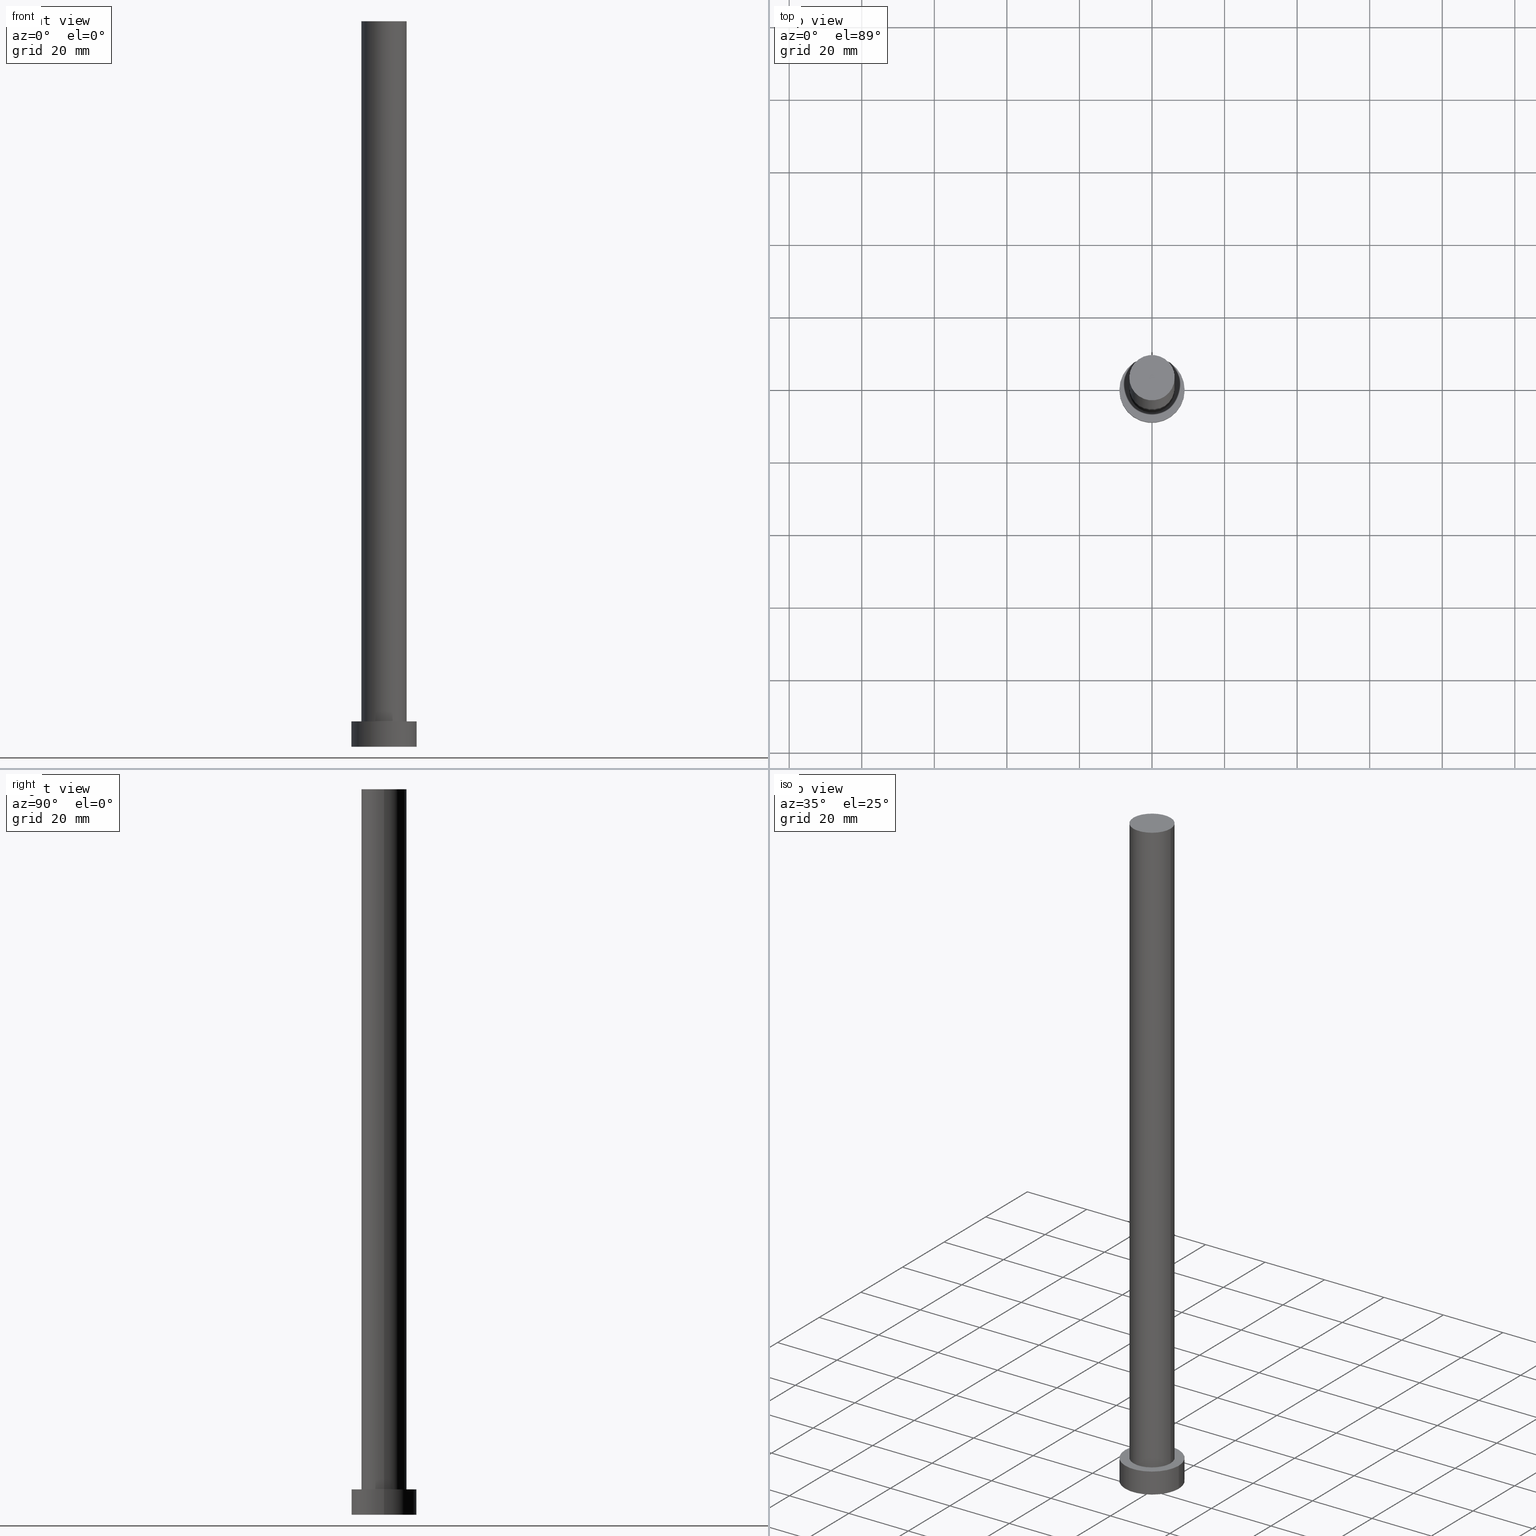
[diagram: canonical four-view strip — front | top / right | iso, engineering-drawing reading convention]
A machine part, canonical four-view strip (front | top / right | iso — engineering-drawing reading convention). The complete STEP part file that produces these views, byte-faithful:
ISO-10303-21;
HEADER;
FILE_DESCRIPTION (( 'STEP AP203' ),
    '1' );
FILE_NAME ('414f.STEP',
    '2023-02-13T10:38:10',
    ( '' ),
    ( '' ),
    'SwSTEP 2.0',
    'SolidWorks 2019',
    '' );
FILE_SCHEMA (( 'CONFIG_CONTROL_DESIGN' ));
ENDSEC;

DATA;
#1 = DIRECTION ( 'NONE',  ( 0.000000000000000000, 0.000000000000000000, 1.000000000000000000 ) ) ;
#2 = AXIS2_PLACEMENT_3D ( 'NONE', #128, #254, #253 ) ;
#3 = ADVANCED_FACE ( 'NONE', ( #234, #156 ), #169, .T. ) ;
#4 = DIRECTION ( 'NONE',  ( 0.000000000000000000, 0.000000000000000000, 1.000000000000000000 ) ) ;
#5 = CARTESIAN_POINT ( 'NONE',  ( 0.000000000000000000, 0.000000000000000000, 7.000000000000000000 ) ) ;
#6 = DIRECTION ( 'NONE',  ( -0.000000000000000000, -0.000000000000000000, -1.000000000000000000 ) ) ;
#7 = DIRECTION ( 'NONE',  ( 0.000000000000000000, 0.000000000000000000, 1.000000000000000000 ) ) ;
#8 = CARTESIAN_POINT ( 'NONE',  ( 0.000000000000000000, 0.000000000000000000, 0.000000000000000000 ) ) ;
#9 = PERSON_AND_ORGANIZATION ( #198, #235 ) ;
#10 = CIRCLE ( 'NONE', #252, 6.250000000000000000 ) ;
#11 = AXIS2_PLACEMENT_3D ( 'NONE', #45, #7, #80 ) ;
#12 = EDGE_LOOP ( 'NONE', ( #154, #17 ) ) ;
#13 = APPROVAL_ROLE ( '' ) ;
#14 = COORDINATED_UNIVERSAL_TIME_OFFSET ( 1, 0, .AHEAD. ) ;
#15 = PERSON_AND_ORGANIZATION_ROLE ( 'design_owner' ) ;
#16 = ORIENTED_EDGE ( 'NONE', *, *, #233, .T. ) ;
#17 = ORIENTED_EDGE ( 'NONE', *, *, #211, .T. ) ;
#18 = ORIENTED_EDGE ( 'NONE', *, *, #36, .T. ) ;
#19 = ORIENTED_EDGE ( 'NONE', *, *, #185, .F. ) ;
#20 = EDGE_LOOP ( 'NONE', ( #18, #214 ) ) ;
#21 = CIRCLE ( 'NONE', #204, 6.250000000000000000 ) ;
#22 =( NAMED_UNIT ( * ) SI_UNIT ( $, .STERADIAN. ) SOLID_ANGLE_UNIT ( ) );
#23 = PRODUCT_DEFINITION_SHAPE ( 'NONE', 'NONE',  #53 ) ;
#24 = CARTESIAN_POINT ( 'NONE',  ( 0.000000000000000000, 0.000000000000000000, 200.0000000000000000 ) ) ;
#25 = EDGE_CURVE ( 'NONE', #248, #190, #188, .T. ) ;
#26 = DIRECTION ( 'NONE',  ( -0.000000000000000000, -0.000000000000000000, -1.000000000000000000 ) ) ;
#27 = DIRECTION ( 'NONE',  ( 0.000000000000000000, 0.000000000000000000, 1.000000000000000000 ) ) ;
#28 = COORDINATED_UNIVERSAL_TIME_OFFSET ( 1, 0, .AHEAD. ) ;
#29 = CALENDAR_DATE ( 2023, 13, 2 ) ;
#30 = LOCAL_TIME ( 11, 38, 10.00000000000000000, #14 ) ;
#31 = PERSON_AND_ORGANIZATION_ROLE ( 'design_supplier' ) ;
#32 = ADVANCED_FACE ( 'NONE', ( #213 ), #153, .T. ) ;
#33 = DATE_AND_TIME ( #250, #218 ) ;
#34 = CIRCLE ( 'NONE', #44, 9.000000000000000000 ) ;
#35 = DIRECTION ( 'NONE',  ( 0.000000000000000000, 0.000000000000000000, 1.000000000000000000 ) ) ;
#36 = EDGE_CURVE ( 'NONE', #79, #210, #202, .T. ) ;
#37 = DIRECTION ( 'NONE',  ( 1.000000000000000000, 0.000000000000000000, 0.000000000000000000 ) ) ;
#38 = ORIENTED_EDGE ( 'NONE', *, *, #223, .F. ) ;
#39 = APPROVAL_PERSON_ORGANIZATION ( #110, #159, #147 ) ;
#40 = VERTEX_POINT ( 'NONE', #113 ) ;
#41 = ADVANCED_FACE ( 'NONE', ( #232 ), #148, .F. ) ;
#42 = ORIENTED_EDGE ( 'NONE', *, *, #223, .T. ) ;
#43 = CARTESIAN_POINT ( 'NONE',  ( 0.000000000000000000, 0.000000000000000000, 7.000000000000000000 ) ) ;
#44 = AXIS2_PLACEMENT_3D ( 'NONE', #119, #118, #104 ) ;
#45 = CARTESIAN_POINT ( 'NONE',  ( 0.000000000000000000, 0.000000000000000000, 7.000000000000000000 ) ) ;
#46 = CC_DESIGN_PERSON_AND_ORGANIZATION_ASSIGNMENT ( #249, #163, ( #240 ) ) ;
#47 = CARTESIAN_POINT ( 'NONE',  ( 9.000000000000000000, 1.102182119232617714E-15, 0.000000000000000000 ) ) ;
#48 = DIRECTION ( 'NONE',  ( 1.000000000000000000, 0.000000000000000000, 0.000000000000000000 ) ) ;
#49 = VECTOR ( 'NONE', #129, 1000.000000000000000 ) ;
#50 = DIRECTION ( 'NONE',  ( -0.000000000000000000, -0.000000000000000000, -1.000000000000000000 ) ) ;
#51 = PERSON_AND_ORGANIZATION ( #198, #235 ) ;
#52 = CALENDAR_DATE ( 2023, 13, 2 ) ;
#53 = PRODUCT_DEFINITION ( 'NEZN�M�', '', #240, #144 ) ;
#54 = EDGE_LOOP ( 'NONE', ( #193, #189, #236, #133 ) ) ;
#55 = AXIS2_PLACEMENT_3D ( 'NONE', #43, #26, #160 ) ;
#56 = ORIENTED_EDGE ( 'NONE', *, *, #120, .F. ) ;
#57 = MANIFOLD_SOLID_BREP ( 'P�idat vysunut�m3', #155 ) ;
#58 = DIRECTION ( 'NONE',  ( 0.000000000000000000, 0.000000000000000000, 1.000000000000000000 ) ) ;
#59 = EDGE_LOOP ( 'NONE', ( #96, #171, #173, #192 ) ) ;
#60 =( GEOMETRIC_REPRESENTATION_CONTEXT ( 3 ) GLOBAL_UNCERTAINTY_ASSIGNED_CONTEXT ( ( #142 ) ) GLOBAL_UNIT_ASSIGNED_CONTEXT ( ( #224, #100, #22 ) ) REPRESENTATION_CONTEXT ( 'NONE', 'WORKASPACE' ) );
#61 = EDGE_LOOP ( 'NONE', ( #75, #172 ) ) ;
#62 = DIRECTION ( 'NONE',  ( -0.000000000000000000, -0.000000000000000000, -1.000000000000000000 ) ) ;
#63 = AXIS2_PLACEMENT_3D ( 'NONE', #5, #6, #135 ) ;
#64 = FACE_OUTER_BOUND ( 'NONE', #20, .T. ) ;
#65 = DIRECTION ( 'NONE',  ( 0.000000000000000000, 0.000000000000000000, 1.000000000000000000 ) ) ;
#66 = DIRECTION ( 'NONE',  ( 1.000000000000000000, 0.000000000000000000, 0.000000000000000000 ) ) ;
#67 = APPROVAL_STATUS ( 'not_yet_approved' ) ;
#68 = APPLICATION_PROTOCOL_DEFINITION ( 'international standard', 'config_control_design', 1994, #215 ) ;
#69 = DATE_AND_TIME ( #52, #88 ) ;
#70 = EDGE_CURVE ( 'NONE', #210, #79, #149, .T. ) ;
#71 = DATE_TIME_ROLE ( 'classification_date' ) ;
#72 = CARTESIAN_POINT ( 'NONE',  ( 0.000000000000000000, 0.000000000000000000, 200.0000000000000000 ) ) ;
#73 = CARTESIAN_POINT ( 'NONE',  ( 0.000000000000000000, 0.000000000000000000, 200.0000000000000000 ) ) ;
#74 = APPROVAL_PERSON_ORGANIZATION ( #9, #181, #86 ) ;
#75 = ORIENTED_EDGE ( 'NONE', *, *, #205, .F. ) ;
#76 = ORIENTED_EDGE ( 'NONE', *, *, #25, .T. ) ;
#77 = ADVANCED_FACE ( 'NONE', ( #136 ), #197, .T. ) ;
#78 = AXIS2_PLACEMENT_3D ( 'NONE', #72, #35, #37 ) ;
#79 = VERTEX_POINT ( 'NONE', #138 ) ;
#80 = DIRECTION ( 'NONE',  ( 1.000000000000000000, 0.000000000000000000, 0.000000000000000000 ) ) ;
#81 = CARTESIAN_POINT ( 'NONE',  ( 0.000000000000000000, 0.000000000000000000, 7.000000000000000000 ) ) ;
#82 = CARTESIAN_POINT ( 'NONE',  ( 9.000000000000000000, 1.102182119232617714E-15, 7.000000000000000000 ) ) ;
#83 = CIRCLE ( 'NONE', #87, 9.000000000000000000 ) ;
#84 = PLANE ( 'NONE',  #212 ) ;
#85 = CARTESIAN_POINT ( 'NONE',  ( -9.000000000000000000, 0.000000000000000000, 7.000000000000000000 ) ) ;
#86 = APPROVAL_ROLE ( '' ) ;
#87 = AXIS2_PLACEMENT_3D ( 'NONE', #220, #4, #134 ) ;
#88 = LOCAL_TIME ( 11, 38, 10.00000000000000000, #107 ) ;
#89 = APPROVAL_STATUS ( 'not_yet_approved' ) ;
#90 = EDGE_CURVE ( 'NONE', #248, #40, #83, .T. ) ;
#91 = APPLICATION_PROTOCOL_DEFINITION ( 'international standard', 'config_control_design', 1994, #196 ) ;
#92 = PERSON_AND_ORGANIZATION_ROLE ( 'classification_officer' ) ;
#93 = PERSON_AND_ORGANIZATION ( #198, #235 ) ;
#94 = AXIS2_PLACEMENT_3D ( 'NONE', #165, #186, #141 ) ;
#95 = VERTEX_POINT ( 'NONE', #217 ) ;
#96 = ORIENTED_EDGE ( 'NONE', *, *, #233, .F. ) ;
#97 = CIRCLE ( 'NONE', #105, 9.000000000000000000 ) ;
#98 = EDGE_LOOP ( 'NONE', ( #19, #231, #76, #42 ) ) ;
#99 = CARTESIAN_POINT ( 'NONE',  ( 0.000000000000000000, 0.000000000000000000, 0.000000000000000000 ) ) ;
#100 =( NAMED_UNIT ( * ) PLANE_ANGLE_UNIT ( ) SI_UNIT ( $, .RADIAN. ) );
#101 = EDGE_CURVE ( 'NONE', #174, #190, #34, .T. ) ;
#102 = LINE ( 'NONE', #82, #183 ) ;
#103 = DIRECTION ( 'NONE',  ( 1.000000000000000000, 0.000000000000000000, 0.000000000000000000 ) ) ;
#104 = DIRECTION ( 'NONE',  ( 1.000000000000000000, 0.000000000000000000, 0.000000000000000000 ) ) ;
#105 = AXIS2_PLACEMENT_3D ( 'NONE', #8, #65, #48 ) ;
#106 = FACE_OUTER_BOUND ( 'NONE', #54, .T. ) ;
#107 = COORDINATED_UNIVERSAL_TIME_OFFSET ( 1, 0, .AHEAD. ) ;
#108 = PRODUCT_RELATED_PRODUCT_CATEGORY ( 'detail', '', ( #239 ) ) ;
#109 = APPROVAL_STATUS ( 'not_yet_approved' ) ;
#110 = PERSON_AND_ORGANIZATION ( #198, #235 ) ;
#111 = CC_DESIGN_APPROVAL ( #181, ( #124 ) ) ;
#112 = CARTESIAN_POINT ( 'NONE',  ( 0.000000000000000000, 0.000000000000000000, 200.0000000000000000 ) ) ;
#113 = CARTESIAN_POINT ( 'NONE',  ( 9.000000000000000000, 1.102182119232617714E-15, 7.000000000000000000 ) ) ;
#114 = CC_DESIGN_APPROVAL ( #159, ( #53 ) ) ;
#115 = DIRECTION ( 'NONE',  ( -0.000000000000000000, -0.000000000000000000, -1.000000000000000000 ) ) ;
#116 = DIRECTION ( 'NONE',  ( 1.000000000000000000, 0.000000000000000000, -0.000000000000000000 ) ) ;
#117 = VECTOR ( 'NONE', #50, 1000.000000000000000 ) ;
#118 = DIRECTION ( 'NONE',  ( 0.000000000000000000, 0.000000000000000000, 1.000000000000000000 ) ) ;
#119 = CARTESIAN_POINT ( 'NONE',  ( 0.000000000000000000, 0.000000000000000000, 0.000000000000000000 ) ) ;
#120 = EDGE_CURVE ( 'NONE', #79, #95, #243, .T. ) ;
#121 = CARTESIAN_POINT ( 'NONE',  ( 6.250000000000000000, 7.654042494670957606E-16, 200.0000000000000000 ) ) ;
#122 = CARTESIAN_POINT ( 'NONE',  ( -6.250000000000000000, 0.000000000000000000, 200.0000000000000000 ) ) ;
#123 = APPROVAL_DATE_TIME ( #33, #181 ) ;
#124 = SECURITY_CLASSIFICATION ( '', '', #182 ) ;
#125 = DATE_AND_TIME ( #167, #30 ) ;
#126 = MECHANICAL_CONTEXT ( 'NONE', #196, 'mechanical' ) ;
#127 = DATE_TIME_ROLE ( 'creation_date' ) ;
#128 = CARTESIAN_POINT ( 'NONE',  ( 0.000000000000000000, 0.000000000000000000, 7.000000000000000000 ) ) ;
#129 = DIRECTION ( 'NONE',  ( -0.000000000000000000, -0.000000000000000000, -1.000000000000000000 ) ) ;
#130 = ORIENTED_EDGE ( 'NONE', *, *, #70, .F. ) ;
#131 = CARTESIAN_POINT ( 'NONE',  ( -9.000000000000000000, 0.000000000000000000, 7.000000000000000000 ) ) ;
#132 = VECTOR ( 'NONE', #157, 1000.000000000000000 ) ;
#133 = ORIENTED_EDGE ( 'NONE', *, *, #25, .F. ) ;
#134 = DIRECTION ( 'NONE',  ( 1.000000000000000000, 0.000000000000000000, 0.000000000000000000 ) ) ;
#135 = DIRECTION ( 'NONE',  ( -1.000000000000000000, 0.000000000000000000, 0.000000000000000000 ) ) ;
#136 = FACE_OUTER_BOUND ( 'NONE', #229, .T. ) ;
#137 = CC_DESIGN_PERSON_AND_ORGANIZATION_ASSIGNMENT ( #51, #92, ( #124 ) ) ;
#138 = CARTESIAN_POINT ( 'NONE',  ( -6.250000000000000000, 0.000000000000000000, 200.0000000000000000 ) ) ;
#139 = AXIS2_PLACEMENT_3D ( 'NONE', #112, #1, #66 ) ;
#140 = EDGE_CURVE ( 'NONE', #251, #95, #10, .T. ) ;
#141 = DIRECTION ( 'NONE',  ( 1.000000000000000000, 0.000000000000000000, 0.000000000000000000 ) ) ;
#142 = UNCERTAINTY_MEASURE_WITH_UNIT (LENGTH_MEASURE( 1.000000000000000082E-05 ), #224, 'distance_accuracy_value', 'NONE');
#143 = DATE_AND_TIME ( #29, #164 ) ;
#144 = DESIGN_CONTEXT ( 'detailed design', #215, 'design' ) ;
#145 = COORDINATED_UNIVERSAL_TIME_OFFSET ( 1, 0, .AHEAD. ) ;
#146 = CC_DESIGN_PERSON_AND_ORGANIZATION_ASSIGNMENT ( #93, #15, ( #239 ) ) ;
#147 = APPROVAL_ROLE ( '' ) ;
#148 = PLANE ( 'NONE',  #222 ) ;
#149 = CIRCLE ( 'NONE', #139, 6.250000000000000000 ) ;
#150 = APPROVAL_PERSON_ORGANIZATION ( #184, #195, #13 ) ;
#151 = CC_DESIGN_PERSON_AND_ORGANIZATION_ASSIGNMENT ( #203, #31, ( #240 ) ) ;
#152 = ORIENTED_EDGE ( 'NONE', *, *, #140, .T. ) ;
#153 = CYLINDRICAL_SURFACE ( 'NONE', #187, 6.250000000000000000 ) ;
#154 = ORIENTED_EDGE ( 'NONE', *, *, #90, .T. ) ;
#155 = CLOSED_SHELL ( 'NONE', ( #77, #168, #191, #3, #41, #32, #216 ) ) ;
#156 = FACE_OUTER_BOUND ( 'NONE', #12, .T. ) ;
#157 = DIRECTION ( 'NONE',  ( -0.000000000000000000, -0.000000000000000000, -1.000000000000000000 ) ) ;
#158 = LINE ( 'NONE', #121, #132 ) ;
#159 = APPROVAL ( #89, 'NEUR�EN�' ) ;
#160 = DIRECTION ( 'NONE',  ( -1.000000000000000000, 0.000000000000000000, 0.000000000000000000 ) ) ;
#161 = CARTESIAN_POINT ( 'NONE',  ( 0.000000000000000000, 0.000000000000000000, 200.0000000000000000 ) ) ;
#162 = CARTESIAN_POINT ( 'NONE',  ( 6.250000000000000000, 7.654042494670957606E-16, 7.000000000000000000 ) ) ;
#163 = PERSON_AND_ORGANIZATION_ROLE ( 'creator' ) ;
#164 = LOCAL_TIME ( 11, 38, 10.00000000000000000, #28 ) ;
#165 = CARTESIAN_POINT ( 'NONE',  ( 0.000000000000000000, 0.000000000000000000, 0.000000000000000000 ) ) ;
#166 = PERSON_AND_ORGANIZATION_ROLE ( 'creator' ) ;
#167 = CALENDAR_DATE ( 2023, 13, 2 ) ;
#168 = ADVANCED_FACE ( 'NONE', ( #106 ), #221, .T. ) ;
#169 = PLANE ( 'NONE',  #2 ) ;
#170 = CC_DESIGN_DATE_AND_TIME_ASSIGNMENT ( #69, #127, ( #53 ) ) ;
#171 = ORIENTED_EDGE ( 'NONE', *, *, #36, .F. ) ;
#172 = ORIENTED_EDGE ( 'NONE', *, *, #140, .F. ) ;
#173 = ORIENTED_EDGE ( 'NONE', *, *, #120, .T. ) ;
#174 = VERTEX_POINT ( 'NONE', #47 ) ;
#175 = CARTESIAN_POINT ( 'NONE',  ( 0.000000000000000000, 0.000000000000000000, 7.000000000000000000 ) ) ;
#176 = DIRECTION ( 'NONE',  ( -1.000000000000000000, 0.000000000000000000, 0.000000000000000000 ) ) ;
#177 = DIRECTION ( 'NONE',  ( -0.000000000000000000, -0.000000000000000000, -1.000000000000000000 ) ) ;
#178 = DIRECTION ( 'NONE',  ( 0.000000000000000000, 0.000000000000000000, 1.000000000000000000 ) ) ;
#179 = CC_DESIGN_APPROVAL ( #195, ( #240 ) ) ;
#180 = CYLINDRICAL_SURFACE ( 'NONE', #55, 9.000000000000000000 ) ;
#181 = APPROVAL ( #67, 'NEUR�EN�' ) ;
#182 = SECURITY_CLASSIFICATION_LEVEL ( 'unclassified' ) ;
#183 = VECTOR ( 'NONE', #177, 1000.000000000000000 ) ;
#184 = PERSON_AND_ORGANIZATION ( #198, #235 ) ;
#185 = EDGE_CURVE ( 'NONE', #40, #174, #102, .T. ) ;
#186 = DIRECTION ( 'NONE',  ( 0.000000000000000000, 0.000000000000000000, 1.000000000000000000 ) ) ;
#187 = AXIS2_PLACEMENT_3D ( 'NONE', #73, #115, #208 ) ;
#188 = LINE ( 'NONE', #131, #49 ) ;
#189 = ORIENTED_EDGE ( 'NONE', *, *, #185, .T. ) ;
#190 = VERTEX_POINT ( 'NONE', #238 ) ;
#191 = ADVANCED_FACE ( 'NONE', ( #199 ), #180, .T. ) ;
#192 = ORIENTED_EDGE ( 'NONE', *, *, #205, .T. ) ;
#193 = ORIENTED_EDGE ( 'NONE', *, *, #211, .F. ) ;
#194 = LOCAL_TIME ( 11, 38, 10.00000000000000000, #145 ) ;
#195 = APPROVAL ( #109, 'NEUR�EN�' ) ;
#196 = APPLICATION_CONTEXT ( 'configuration controlled 3d designs of mechanical parts and assemblies' ) ;
#197 = CYLINDRICAL_SURFACE ( 'NONE', #228, 6.250000000000000000 ) ;
#198 = PERSON ( 'NEUR�EN�', 'NEUR�EN�', 'NEUR�EN�', ('NEUR�EN�'), ('NEUR�EN�'), ('NEUR�EN�') ) ;
#199 = FACE_OUTER_BOUND ( 'NONE', #98, .T. ) ;
#200 = DIRECTION ( 'NONE',  ( 0.000000000000000000, 0.000000000000000000, 1.000000000000000000 ) ) ;
#201 = SHAPE_DEFINITION_REPRESENTATION ( #23, #237 ) ;
#202 = CIRCLE ( 'NONE', #78, 6.250000000000000000 ) ;
#203 = PERSON_AND_ORGANIZATION ( #198, #235 ) ;
#204 = AXIS2_PLACEMENT_3D ( 'NONE', #81, #178, #219 ) ;
#205 = EDGE_CURVE ( 'NONE', #95, #251, #21, .T. ) ;
#206 = APPROVAL_DATE_TIME ( #143, #195 ) ;
#207 = CC_DESIGN_PERSON_AND_ORGANIZATION_ASSIGNMENT ( #247, #166, ( #53 ) ) ;
#208 = DIRECTION ( 'NONE',  ( -1.000000000000000000, 0.000000000000000000, 0.000000000000000000 ) ) ;
#209 = ORIENTED_EDGE ( 'NONE', *, *, #101, .F. ) ;
#210 = VERTEX_POINT ( 'NONE', #241 ) ;
#211 = EDGE_CURVE ( 'NONE', #40, #248, #245, .T. ) ;
#212 = AXIS2_PLACEMENT_3D ( 'NONE', #161, #27, #242 ) ;
#213 = FACE_OUTER_BOUND ( 'NONE', #59, .T. ) ;
#214 = ORIENTED_EDGE ( 'NONE', *, *, #70, .T. ) ;
#215 = APPLICATION_CONTEXT ( 'configuration controlled 3d designs of mechanical parts and assemblies' ) ;
#216 = ADVANCED_FACE ( 'NONE', ( #64 ), #84, .T. ) ;
#217 = CARTESIAN_POINT ( 'NONE',  ( -6.250000000000000000, 0.000000000000000000, 7.000000000000000000 ) ) ;
#218 = LOCAL_TIME ( 11, 38, 10.00000000000000000, #226 ) ;
#219 = DIRECTION ( 'NONE',  ( 1.000000000000000000, 0.000000000000000000, 0.000000000000000000 ) ) ;
#220 = CARTESIAN_POINT ( 'NONE',  ( 0.000000000000000000, 0.000000000000000000, 7.000000000000000000 ) ) ;
#221 = CYLINDRICAL_SURFACE ( 'NONE', #63, 9.000000000000000000 ) ;
#222 = AXIS2_PLACEMENT_3D ( 'NONE', #99, #58, #116 ) ;
#223 = EDGE_CURVE ( 'NONE', #190, #174, #97, .T. ) ;
#224 =( LENGTH_UNIT ( ) NAMED_UNIT ( * ) SI_UNIT ( .MILLI., .METRE. ) );
#225 = CALENDAR_DATE ( 2023, 13, 2 ) ;
#226 = COORDINATED_UNIVERSAL_TIME_OFFSET ( 1, 0, .AHEAD. ) ;
#227 = APPROVAL_DATE_TIME ( #125, #159 ) ;
#228 = AXIS2_PLACEMENT_3D ( 'NONE', #24, #62, #176 ) ;
#229 = EDGE_LOOP ( 'NONE', ( #130, #16, #152, #56 ) ) ;
#230 = CC_DESIGN_SECURITY_CLASSIFICATION ( #124, ( #240 ) ) ;
#231 = ORIENTED_EDGE ( 'NONE', *, *, #90, .F. ) ;
#232 = FACE_OUTER_BOUND ( 'NONE', #255, .T. ) ;
#233 = EDGE_CURVE ( 'NONE', #210, #251, #158, .T. ) ;
#234 = FACE_BOUND ( 'NONE', #61, .T. ) ;
#235 = ORGANIZATION ( 'NEUR�EN�', 'NEUR�EN�', '' ) ;
#236 = ORIENTED_EDGE ( 'NONE', *, *, #101, .T. ) ;
#237 = ADVANCED_BREP_SHAPE_REPRESENTATION ( '414f', ( #57, #94 ), #60 ) ;
#238 = CARTESIAN_POINT ( 'NONE',  ( -9.000000000000000000, 0.000000000000000000, 0.000000000000000000 ) ) ;
#239 = PRODUCT ( '414f', '414f', '', ( #126 ) ) ;
#240 = PRODUCT_DEFINITION_FORMATION_WITH_SPECIFIED_SOURCE ( 'LIBOVOLN�', '', #239, .NOT_KNOWN. ) ;
#241 = CARTESIAN_POINT ( 'NONE',  ( 6.250000000000000000, 7.654042494670957606E-16, 200.0000000000000000 ) ) ;
#242 = DIRECTION ( 'NONE',  ( 1.000000000000000000, 0.000000000000000000, -0.000000000000000000 ) ) ;
#243 = LINE ( 'NONE', #122, #117 ) ;
#244 = DATE_AND_TIME ( #225, #194 ) ;
#245 = CIRCLE ( 'NONE', #11, 9.000000000000000000 ) ;
#246 = CC_DESIGN_DATE_AND_TIME_ASSIGNMENT ( #244, #71, ( #124 ) ) ;
#247 = PERSON_AND_ORGANIZATION ( #198, #235 ) ;
#248 = VERTEX_POINT ( 'NONE', #85 ) ;
#249 = PERSON_AND_ORGANIZATION ( #198, #235 ) ;
#250 = CALENDAR_DATE ( 2023, 13, 2 ) ;
#251 = VERTEX_POINT ( 'NONE', #162 ) ;
#252 = AXIS2_PLACEMENT_3D ( 'NONE', #175, #200, #103 ) ;
#253 = DIRECTION ( 'NONE',  ( 1.000000000000000000, 0.000000000000000000, -0.000000000000000000 ) ) ;
#254 = DIRECTION ( 'NONE',  ( 0.000000000000000000, 0.000000000000000000, 1.000000000000000000 ) ) ;
#255 = EDGE_LOOP ( 'NONE', ( #38, #209 ) ) ;
ENDSEC;
END-ISO-10303-21;
